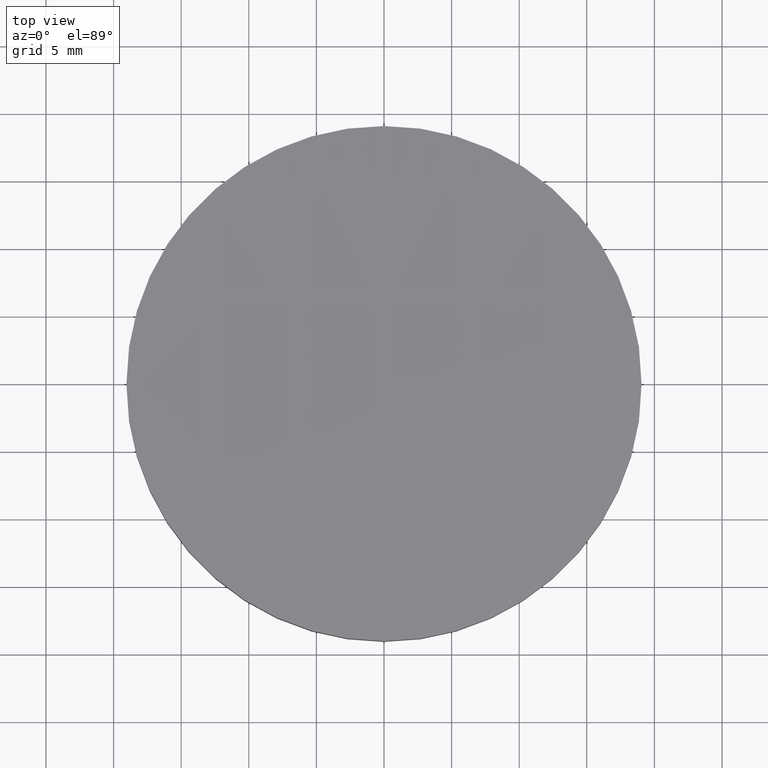
[diagram: clean part render]
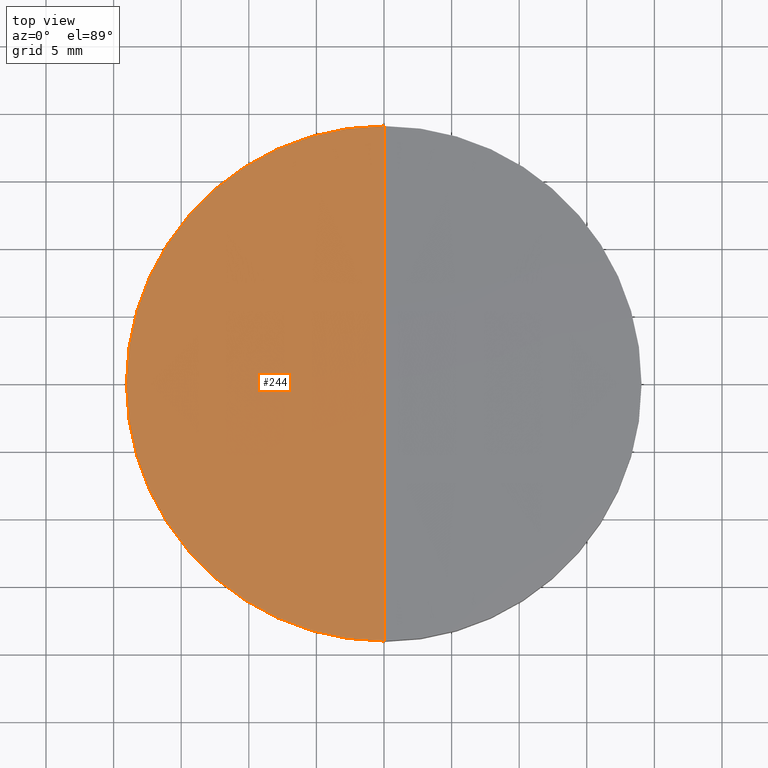
[diagram: same view with one face highlighted and labeled with its STEP entity id]
A machine part, top view. The second image highlights one B-rep face of the part: STEP entity #244.
In plain terms, the highlighted face is a freeform B-spline surface patch.
Its self-contained STEP definition (entity closure, byte-faithful):
#2 = CARTESIAN_POINT ( 'NONE',  ( -19.13952497321511400, 19.27840483950793200, 4.027732086510656700 ) ) ;
#9 = VERTEX_POINT ( 'NONE', #79 ) ;
#22 = CARTESIAN_POINT ( 'NONE',  ( -19.13952497321512800, -19.27840483950794200, 4.027732086510656700 ) ) ;
#25 = CARTESIAN_POINT ( 'NONE',  ( 4.348604400664740100E-014, -6.431656436612463800, 5.163252581776822200 ) ) ;
#27 = CARTESIAN_POINT ( 'NONE',  ( 5.132099445097372400E-014, 19.27840483950792500, 4.510662705073443100 ) ) ;
#29 = CARTESIAN_POINT ( 'NONE',  ( -19.17243646021631800, 6.431656436612445100, 4.679491536920929600 ) ) ;
#33 = ORIENTED_EDGE ( 'NONE', *, *, #200, .F. ) ;
#35 = EDGE_CURVE ( 'NONE', #9, #209, #161, .T. ) ;
#47 = CARTESIAN_POINT ( 'NONE',  ( -12.76442145578966600, -19.27840483950794200, 4.349651678797236800 ) ) ;
#48 = CARTESIAN_POINT ( 'NONE',  ( -6.383226228310255700, -19.27840483950794200, 4.510662705073442200 ) ) ;
#49 = CARTESIAN_POINT ( 'NONE',  ( -6.383226228310244100, 19.27840483950792500, 4.510662705073442200 ) ) ;
#53 = EDGE_LOOP ( 'NONE', ( #278, #166, #33 ) ) ;
#67 = AXIS2_PLACEMENT_3D ( 'NONE', #271, #292, #203 ) ;
#68 = VERTEX_POINT ( 'NONE', #243 ) ;
#74 = EDGE_CURVE ( 'NONE', #9, #68, #97, .T. ) ;
#78 = CIRCLE ( 'NONE', #145, 19.05000000000000100 ) ;
#79 = CARTESIAN_POINT ( 'NONE',  ( 3.959762838265699500E-014, -19.04999999999978000, 4.522196320584167300 ) ) ;
#87 = AXIS2_PLACEMENT_3D ( 'NONE', #109, #131, #293 ) ;
#97 = CIRCLE ( 'NONE', #87, 19.05000000000000100 ) ;
#109 = CARTESIAN_POINT ( 'NONE',  ( -4.662936703425659800E-015, -8.881784197001250400E-016, 4.522196320584130000 ) ) ;
#113 = CARTESIAN_POINT ( 'NONE',  ( 4.742067089698283200E-014, 6.431656436612438900, 5.163252581776819600 ) ) ;
#131 = DIRECTION ( 'NONE',  ( -0.0000000000000000000, -0.0000000000000000000, -1.000000000000000000 ) ) ;
#133 = DIRECTION ( 'NONE',  ( -0.0000000000000000000, -0.0000000000000000000, -1.000000000000000000 ) ) ;
#135 = CARTESIAN_POINT ( 'NONE',  ( -6.394202543936295900, 6.431656436612439800, 5.163252581776818700 ) ) ;
#141 = FACE_OUTER_BOUND ( 'NONE', #53, .T. ) ;
#145 = AXIS2_PLACEMENT_3D ( 'NONE', #273, #133, #205 ) ;
#160 = CARTESIAN_POINT ( 'NONE',  ( -19.17243646021632100, -6.431656436612457600, 4.679491536920932200 ) ) ;
#161 = CIRCLE ( 'NONE', #67, 380.0000000000000000 ) ;
#166 = ORIENTED_EDGE ( 'NONE', *, *, #35, .T. ) ;
#184 = CARTESIAN_POINT ( 'NONE',  ( 3.952724725196252000E-014, -19.27840483950794900, 4.510662705073443100 ) ) ;
#200 = EDGE_CURVE ( 'NONE', #68, #209, #78, .T. ) ;
#203 = DIRECTION ( 'NONE',  ( -3.058797472403380500E-016, -1.000000000000000000, 2.921639538487254300E-016 ) ) ;
#205 = DIRECTION ( 'NONE',  ( 1.000000000000000000, 0.0000000000000000000, 0.0000000000000000000 ) ) ;
#207 = CARTESIAN_POINT ( 'NONE',  ( -12.78637059462188200, 6.431656436612442500, 5.001964688007518600 ) ) ;
#209 = VERTEX_POINT ( 'NONE', #249 ) ;
#221 = CARTESIAN_POINT ( 'NONE',  ( -12.78637059462188600, -6.431656436612458400, 5.001964688007521300 ) ) ;
#233 =( BOUNDED_SURFACE ( )  B_SPLINE_SURFACE ( 3, 3, ( 
 ( #184, #48, #47, #22 ),
 ( #25, #274, #221, #160 ),
 ( #113, #135, #207, #29 ),
 ( #27, #49, #276, #2 ) ),
 .UNSPECIFIED., .F., .F., .F. ) 
 B_SPLINE_SURFACE_WITH_KNOTS ( ( 4, 4 ),
 ( 4, 4 ),
 ( 0.0000000000000000000, 1.000000000000000000 ),
 ( 0.0000000000000000000, 1.000000000000000000 ),
 .UNSPECIFIED. ) 
 GEOMETRIC_REPRESENTATION_ITEM ( )  RATIONAL_B_SPLINE_SURFACE ( (
 ( 1.000000000000000000, 0.9997878814716106800, 0.9997878814716106800, 1.000000000000000000),
 ( 0.9991415135176726600, 0.9989295770901726000, 0.9989295770901726000, 0.9991415135176726600),
 ( 0.9991415135176726600, 0.9989295770901726000, 0.9989295770901726000, 0.9991415135176726600),
 ( 1.000000000000000000, 0.9997878814716106800, 0.9997878814716106800, 1.000000000000000000) ) ) 
 REPRESENTATION_ITEM ( '' )  SURFACE ( )  );
#243 = CARTESIAN_POINT ( 'NONE',  ( -19.05000000000000400, 1.444773732675583000E-015, 4.522196320584130000 ) ) ;
#244 = ADVANCED_FACE ( 'NONE', ( #141 ), #233, .T. ) ;
#249 = CARTESIAN_POINT ( 'NONE',  ( 5.125164675251374400E-014, 19.04999999999980500, 4.522196320584167300 ) ) ;
#271 = CARTESIAN_POINT ( 'NONE',  ( 2.842170943040400100E-014, 2.842170943040400100E-014, -375.0000000000000000 ) ) ;
#273 = CARTESIAN_POINT ( 'NONE',  ( -4.662936703425659800E-015, -8.881784197001250400E-016, 4.522196320584130000 ) ) ;
#274 = CARTESIAN_POINT ( 'NONE',  ( -6.394202543936300400, -6.431656436612461100, 5.163252581776821300 ) ) ;
#276 = CARTESIAN_POINT ( 'NONE',  ( -12.76442145578965200, 19.27840483950792500, 4.349651678797236800 ) ) ;
#278 = ORIENTED_EDGE ( 'NONE', *, *, #74, .F. ) ;
#292 = DIRECTION ( 'NONE',  ( -1.000000000000000000, 3.058797472403380000E-016, 4.480087937417740100E-017 ) ) ;
#293 = DIRECTION ( 'NONE',  ( 1.000000000000000000, 0.0000000000000000000, 0.0000000000000000000 ) ) ;